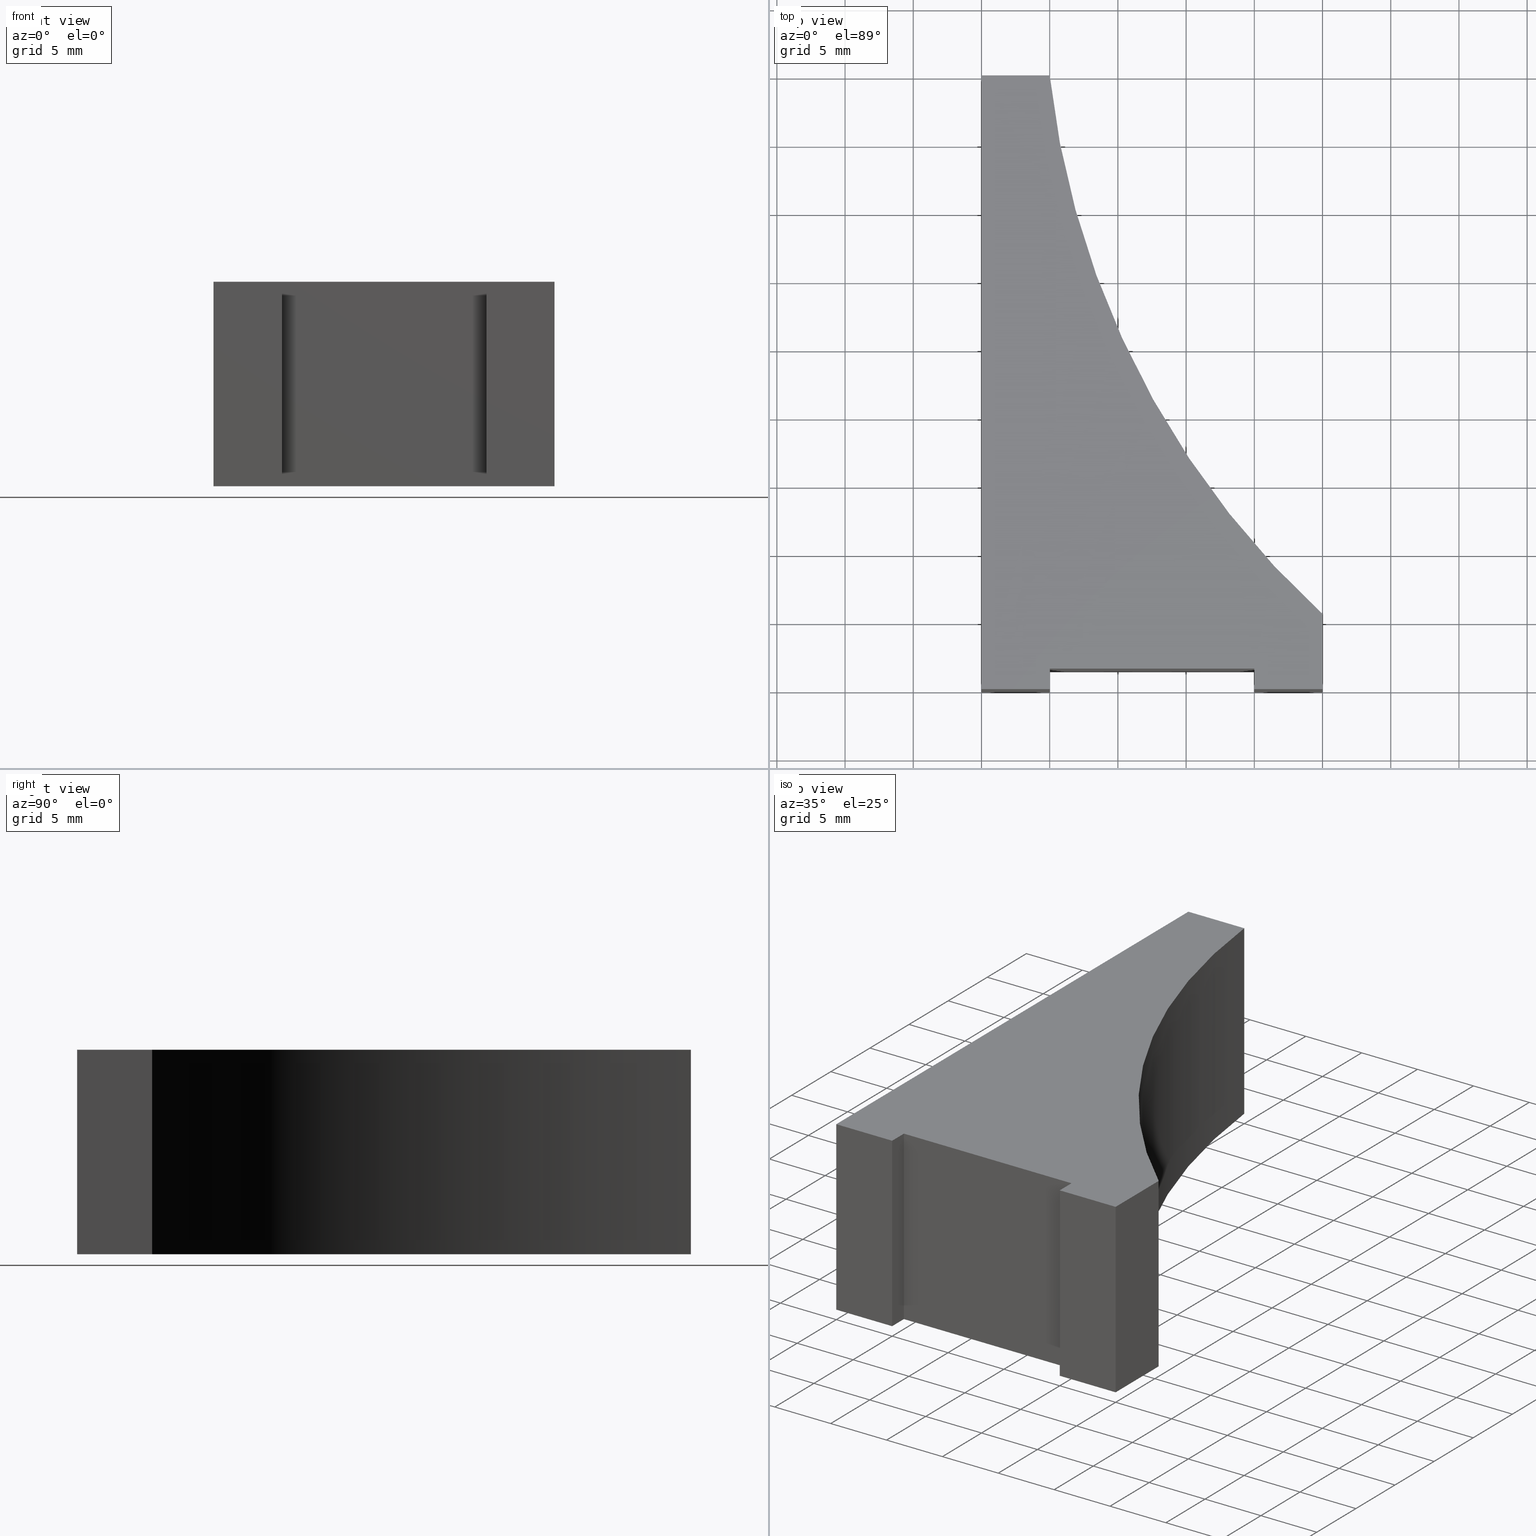
[diagram: canonical four-view strip — front | top / right | iso, engineering-drawing reading convention]
A machine part, canonical four-view strip (front | top / right | iso — engineering-drawing reading convention). The complete STEP part file that produces these views, byte-faithful:
ISO-10303-21;
HEADER;
/* Generated by software containing ST-Developer
 * from STEP Tools, Inc. (www.steptools.com) 
 */

FILE_DESCRIPTION(
/* description */ (''),
/* implementation_level */ '2;1');

FILE_NAME(
/* name */ 'E_3_01_07_09_00_WKZ-0065.stp',
/* time_stamp */ '2025-11-24T11:07:38+01:00',
/* author */ ('d.fischer'),
/* organization */ (''),
/* preprocessor_version */ 'ST-DEVELOPER v20',
/* originating_system */ 'Autodesk Inventor 2025',
/* authorisation */ '');

FILE_SCHEMA (('AUTOMOTIVE_DESIGN { 1 0 10303 214 3 1 1 }'));
ENDSEC;

DATA;
#10=MECHANICAL_DESIGN_GEOMETRIC_PRESENTATION_REPRESENTATION('',(#13),#359);
#11=SHAPE_REPRESENTATION_RELATIONSHIP('SRR','None',#366,#12);
#12=ADVANCED_BREP_SHAPE_REPRESENTATION('',(#14),#358);
#13=STYLED_ITEM('',(#375),#14);
#14=MANIFOLD_SOLID_BREP('Volumenk\X\F6rper1',#210);
#15=CIRCLE('',#240,63.);
#16=CIRCLE('',#241,63.);
#17=CYLINDRICAL_SURFACE('',#239,63.);
#18=FACE_OUTER_BOUND('',#29,.T.);
#19=FACE_OUTER_BOUND('',#30,.T.);
#20=FACE_OUTER_BOUND('',#31,.T.);
#21=FACE_OUTER_BOUND('',#32,.T.);
#22=FACE_OUTER_BOUND('',#33,.T.);
#23=FACE_OUTER_BOUND('',#34,.T.);
#24=FACE_OUTER_BOUND('',#35,.T.);
#25=FACE_OUTER_BOUND('',#36,.T.);
#26=FACE_OUTER_BOUND('',#37,.T.);
#27=FACE_OUTER_BOUND('',#38,.T.);
#28=FACE_OUTER_BOUND('',#39,.T.);
#29=EDGE_LOOP('',(#135,#136,#137,#138));
#30=EDGE_LOOP('',(#139,#140,#141,#142));
#31=EDGE_LOOP('',(#143,#144,#145,#146));
#32=EDGE_LOOP('',(#147,#148,#149,#150));
#33=EDGE_LOOP('',(#151,#152,#153,#154));
#34=EDGE_LOOP('',(#155,#156,#157,#158));
#35=EDGE_LOOP('',(#159,#160,#161,#162));
#36=EDGE_LOOP('',(#163,#164,#165,#166));
#37=EDGE_LOOP('',(#167,#168,#169,#170));
#38=EDGE_LOOP('',(#171,#172,#173,#174,#175,#176,#177,#178,#179));
#39=EDGE_LOOP('',(#180,#181,#182,#183,#184,#185,#186,#187,#188));
#40=LINE('',#303,#65);
#41=LINE('',#305,#66);
#42=LINE('',#307,#67);
#43=LINE('',#308,#68);
#44=LINE('',#311,#69);
#45=LINE('',#313,#70);
#46=LINE('',#314,#71);
#47=LINE('',#317,#72);
#48=LINE('',#319,#73);
#49=LINE('',#320,#74);
#50=LINE('',#323,#75);
#51=LINE('',#325,#76);
#52=LINE('',#326,#77);
#53=LINE('',#329,#78);
#54=LINE('',#331,#79);
#55=LINE('',#332,#80);
#56=LINE('',#335,#81);
#57=LINE('',#337,#82);
#58=LINE('',#338,#83);
#59=LINE('',#344,#84);
#60=LINE('',#347,#85);
#61=LINE('',#349,#86);
#62=LINE('',#350,#87);
#63=LINE('',#352,#88);
#64=LINE('',#353,#89);
#65=VECTOR('',#250,10.);
#66=VECTOR('',#251,10.);
#67=VECTOR('',#252,10.);
#68=VECTOR('',#253,10.);
#69=VECTOR('',#256,10.);
#70=VECTOR('',#257,10.);
#71=VECTOR('',#258,10.);
#72=VECTOR('',#261,10.);
#73=VECTOR('',#262,10.);
#74=VECTOR('',#263,10.);
#75=VECTOR('',#266,10.);
#76=VECTOR('',#267,10.);
#77=VECTOR('',#268,10.);
#78=VECTOR('',#271,10.);
#79=VECTOR('',#272,10.);
#80=VECTOR('',#273,10.);
#81=VECTOR('',#276,10.);
#82=VECTOR('',#277,10.);
#83=VECTOR('',#278,10.);
#84=VECTOR('',#285,10.);
#85=VECTOR('',#288,10.);
#86=VECTOR('',#289,10.);
#87=VECTOR('',#290,10.);
#88=VECTOR('',#293,10.);
#89=VECTOR('',#294,10.);
#90=VERTEX_POINT('',#301);
#91=VERTEX_POINT('',#302);
#92=VERTEX_POINT('',#304);
#93=VERTEX_POINT('',#306);
#94=VERTEX_POINT('',#310);
#95=VERTEX_POINT('',#312);
#96=VERTEX_POINT('',#316);
#97=VERTEX_POINT('',#318);
#98=VERTEX_POINT('',#322);
#99=VERTEX_POINT('',#324);
#100=VERTEX_POINT('',#328);
#101=VERTEX_POINT('',#330);
#102=VERTEX_POINT('',#334);
#103=VERTEX_POINT('',#336);
#104=VERTEX_POINT('',#340);
#105=VERTEX_POINT('',#342);
#106=VERTEX_POINT('',#346);
#107=VERTEX_POINT('',#348);
#108=EDGE_CURVE('',#90,#91,#40,.T.);
#109=EDGE_CURVE('',#90,#92,#41,.T.);
#110=EDGE_CURVE('',#93,#92,#42,.T.);
#111=EDGE_CURVE('',#91,#93,#43,.T.);
#112=EDGE_CURVE('',#91,#94,#44,.T.);
#113=EDGE_CURVE('',#95,#93,#45,.T.);
#114=EDGE_CURVE('',#94,#95,#46,.T.);
#115=EDGE_CURVE('',#94,#96,#47,.T.);
#116=EDGE_CURVE('',#97,#95,#48,.T.);
#117=EDGE_CURVE('',#96,#97,#49,.T.);
#118=EDGE_CURVE('',#96,#98,#50,.T.);
#119=EDGE_CURVE('',#99,#97,#51,.T.);
#120=EDGE_CURVE('',#98,#99,#52,.T.);
#121=EDGE_CURVE('',#98,#100,#53,.T.);
#122=EDGE_CURVE('',#101,#99,#54,.T.);
#123=EDGE_CURVE('',#100,#101,#55,.T.);
#124=EDGE_CURVE('',#100,#102,#56,.T.);
#125=EDGE_CURVE('',#103,#101,#57,.T.);
#126=EDGE_CURVE('',#102,#103,#58,.T.);
#127=EDGE_CURVE('',#102,#104,#15,.T.);
#128=EDGE_CURVE('',#105,#103,#16,.T.);
#129=EDGE_CURVE('',#104,#105,#59,.T.);
#130=EDGE_CURVE('',#104,#106,#60,.T.);
#131=EDGE_CURVE('',#107,#105,#61,.T.);
#132=EDGE_CURVE('',#106,#107,#62,.T.);
#133=EDGE_CURVE('',#106,#90,#63,.T.);
#134=EDGE_CURVE('',#92,#107,#64,.T.);
#135=ORIENTED_EDGE('',*,*,#108,.F.);
#136=ORIENTED_EDGE('',*,*,#109,.T.);
#137=ORIENTED_EDGE('',*,*,#110,.F.);
#138=ORIENTED_EDGE('',*,*,#111,.F.);
#139=ORIENTED_EDGE('',*,*,#112,.F.);
#140=ORIENTED_EDGE('',*,*,#111,.T.);
#141=ORIENTED_EDGE('',*,*,#113,.F.);
#142=ORIENTED_EDGE('',*,*,#114,.F.);
#143=ORIENTED_EDGE('',*,*,#115,.F.);
#144=ORIENTED_EDGE('',*,*,#114,.T.);
#145=ORIENTED_EDGE('',*,*,#116,.F.);
#146=ORIENTED_EDGE('',*,*,#117,.F.);
#147=ORIENTED_EDGE('',*,*,#118,.F.);
#148=ORIENTED_EDGE('',*,*,#117,.T.);
#149=ORIENTED_EDGE('',*,*,#119,.F.);
#150=ORIENTED_EDGE('',*,*,#120,.F.);
#151=ORIENTED_EDGE('',*,*,#121,.F.);
#152=ORIENTED_EDGE('',*,*,#120,.T.);
#153=ORIENTED_EDGE('',*,*,#122,.F.);
#154=ORIENTED_EDGE('',*,*,#123,.F.);
#155=ORIENTED_EDGE('',*,*,#124,.F.);
#156=ORIENTED_EDGE('',*,*,#123,.T.);
#157=ORIENTED_EDGE('',*,*,#125,.F.);
#158=ORIENTED_EDGE('',*,*,#126,.F.);
#159=ORIENTED_EDGE('',*,*,#127,.F.);
#160=ORIENTED_EDGE('',*,*,#126,.T.);
#161=ORIENTED_EDGE('',*,*,#128,.F.);
#162=ORIENTED_EDGE('',*,*,#129,.F.);
#163=ORIENTED_EDGE('',*,*,#130,.F.);
#164=ORIENTED_EDGE('',*,*,#129,.T.);
#165=ORIENTED_EDGE('',*,*,#131,.F.);
#166=ORIENTED_EDGE('',*,*,#132,.F.);
#167=ORIENTED_EDGE('',*,*,#133,.F.);
#168=ORIENTED_EDGE('',*,*,#132,.T.);
#169=ORIENTED_EDGE('',*,*,#134,.F.);
#170=ORIENTED_EDGE('',*,*,#109,.F.);
#171=ORIENTED_EDGE('',*,*,#134,.T.);
#172=ORIENTED_EDGE('',*,*,#131,.T.);
#173=ORIENTED_EDGE('',*,*,#128,.T.);
#174=ORIENTED_EDGE('',*,*,#125,.T.);
#175=ORIENTED_EDGE('',*,*,#122,.T.);
#176=ORIENTED_EDGE('',*,*,#119,.T.);
#177=ORIENTED_EDGE('',*,*,#116,.T.);
#178=ORIENTED_EDGE('',*,*,#113,.T.);
#179=ORIENTED_EDGE('',*,*,#110,.T.);
#180=ORIENTED_EDGE('',*,*,#133,.T.);
#181=ORIENTED_EDGE('',*,*,#108,.T.);
#182=ORIENTED_EDGE('',*,*,#112,.T.);
#183=ORIENTED_EDGE('',*,*,#115,.T.);
#184=ORIENTED_EDGE('',*,*,#118,.T.);
#185=ORIENTED_EDGE('',*,*,#121,.T.);
#186=ORIENTED_EDGE('',*,*,#124,.T.);
#187=ORIENTED_EDGE('',*,*,#127,.T.);
#188=ORIENTED_EDGE('',*,*,#130,.T.);
#189=PLANE('',#233);
#190=PLANE('',#234);
#191=PLANE('',#235);
#192=PLANE('',#236);
#193=PLANE('',#237);
#194=PLANE('',#238);
#195=PLANE('',#242);
#196=PLANE('',#243);
#197=PLANE('',#244);
#198=PLANE('',#245);
#199=ADVANCED_FACE('',(#18),#189,.T.);
#200=ADVANCED_FACE('',(#19),#190,.T.);
#201=ADVANCED_FACE('',(#20),#191,.T.);
#202=ADVANCED_FACE('',(#21),#192,.T.);
#203=ADVANCED_FACE('',(#22),#193,.T.);
#204=ADVANCED_FACE('',(#23),#194,.T.);
#205=ADVANCED_FACE('',(#24),#17,.F.);
#206=ADVANCED_FACE('',(#25),#195,.T.);
#207=ADVANCED_FACE('',(#26),#196,.T.);
#208=ADVANCED_FACE('',(#27),#197,.F.);
#209=ADVANCED_FACE('',(#28),#198,.T.);
#210=CLOSED_SHELL('',(#199,#200,#201,#202,#203,#204,#205,#206,#207,#208,
#209));
#211=DERIVED_UNIT_ELEMENT(#214,1.);
#212=DERIVED_UNIT_ELEMENT(#361,-3.);
#213=DIMENSIONAL_EXPONENTS(0.,1.,0.,0.,0.,0.,0.);
#214=(
CONVERSION_BASED_UNIT('gram',#216)
MASS_UNIT()
NAMED_UNIT(#213)
);
#215=(
MASS_UNIT()
NAMED_UNIT(*)
SI_UNIT(.KILO.,.GRAM.)
);
#216=MASS_MEASURE_WITH_UNIT(MASS_MEASURE(0.001),#215);
#217=DERIVED_UNIT((#211,#212));
#218=MEASURE_REPRESENTATION_ITEM('density measure',
POSITIVE_RATIO_MEASURE(1.),#217);
#219=PROPERTY_DEFINITION_REPRESENTATION(#224,#221);
#220=PROPERTY_DEFINITION_REPRESENTATION(#225,#222);
#221=REPRESENTATION('material name',(#223),#358);
#222=REPRESENTATION('density',(#218),#358);
#223=DESCRIPTIVE_REPRESENTATION_ITEM('Allgemein','Allgemein');
#224=PROPERTY_DEFINITION('material property','material name',#368);
#225=PROPERTY_DEFINITION('material property','density of part',#368);
#226=DATE_TIME_ROLE('creation_date');
#227=APPLIED_DATE_AND_TIME_ASSIGNMENT(#228,#226,(#368));
#228=DATE_AND_TIME(#229,#230);
#229=CALENDAR_DATE(2013,21,10);
#230=LOCAL_TIME(0,0,0.,#231);
#231=COORDINATED_UNIVERSAL_TIME_OFFSET(0,0,.BEHIND.);
#232=AXIS2_PLACEMENT_3D('',#299,#246,#247);
#233=AXIS2_PLACEMENT_3D('',#300,#248,#249);
#234=AXIS2_PLACEMENT_3D('',#309,#254,#255);
#235=AXIS2_PLACEMENT_3D('',#315,#259,#260);
#236=AXIS2_PLACEMENT_3D('',#321,#264,#265);
#237=AXIS2_PLACEMENT_3D('',#327,#269,#270);
#238=AXIS2_PLACEMENT_3D('',#333,#274,#275);
#239=AXIS2_PLACEMENT_3D('',#339,#279,#280);
#240=AXIS2_PLACEMENT_3D('',#341,#281,#282);
#241=AXIS2_PLACEMENT_3D('',#343,#283,#284);
#242=AXIS2_PLACEMENT_3D('',#345,#286,#287);
#243=AXIS2_PLACEMENT_3D('',#351,#291,#292);
#244=AXIS2_PLACEMENT_3D('',#354,#295,#296);
#245=AXIS2_PLACEMENT_3D('',#355,#297,#298);
#246=DIRECTION('axis',(0.,0.,1.));
#247=DIRECTION('refdir',(1.,0.,0.));
#248=DIRECTION('center_axis',(0.,-1.,0.));
#249=DIRECTION('ref_axis',(-1.,0.,0.));
#250=DIRECTION('',(1.,0.,0.));
#251=DIRECTION('',(0.,0.,-1.));
#252=DIRECTION('',(-1.,0.,0.));
#253=DIRECTION('',(0.,0.,-1.));
#254=DIRECTION('center_axis',(1.,0.,0.));
#255=DIRECTION('ref_axis',(0.,-1.,0.));
#256=DIRECTION('',(0.,1.,0.));
#257=DIRECTION('',(0.,-1.,0.));
#258=DIRECTION('',(0.,0.,-1.));
#259=DIRECTION('center_axis',(-7.40148683083438E-17,-1.,0.));
#260=DIRECTION('ref_axis',(-1.,7.40148683083438E-17,0.));
#261=DIRECTION('',(1.,-7.40148683083438E-17,0.));
#262=DIRECTION('',(-1.,7.40148683083438E-17,0.));
#263=DIRECTION('',(0.,0.,-1.));
#264=DIRECTION('center_axis',(-1.,0.,0.));
#265=DIRECTION('ref_axis',(0.,1.,0.));
#266=DIRECTION('',(0.,-1.,0.));
#267=DIRECTION('',(0.,1.,0.));
#268=DIRECTION('',(0.,0.,-1.));
#269=DIRECTION('center_axis',(0.,-1.,0.));
#270=DIRECTION('ref_axis',(-1.,0.,0.));
#271=DIRECTION('',(1.,0.,0.));
#272=DIRECTION('',(-1.,0.,0.));
#273=DIRECTION('',(0.,0.,-1.));
#274=DIRECTION('center_axis',(1.,0.,0.));
#275=DIRECTION('ref_axis',(0.,-1.,0.));
#276=DIRECTION('',(0.,1.,0.));
#277=DIRECTION('',(0.,-1.,0.));
#278=DIRECTION('',(0.,0.,-1.));
#279=DIRECTION('center_axis',(0.,0.,-1.));
#280=DIRECTION('ref_axis',(0.993994859872907,0.109426772529581,0.));
#281=DIRECTION('center_axis',(0.,0.,-1.));
#282=DIRECTION('ref_axis',(0.993994859872907,0.109426772529581,0.));
#283=DIRECTION('center_axis',(0.,0.,1.));
#284=DIRECTION('ref_axis',(0.993994859872907,0.109426772529581,0.));
#285=DIRECTION('',(0.,0.,-1.));
#286=DIRECTION('center_axis',(0.,1.,0.));
#287=DIRECTION('ref_axis',(1.,0.,0.));
#288=DIRECTION('',(-1.,0.,0.));
#289=DIRECTION('',(1.,0.,0.));
#290=DIRECTION('',(0.,0.,-1.));
#291=DIRECTION('center_axis',(-1.,0.,0.));
#292=DIRECTION('ref_axis',(0.,1.,0.));
#293=DIRECTION('',(0.,-1.,0.));
#294=DIRECTION('',(0.,1.,0.));
#295=DIRECTION('center_axis',(0.,0.,1.));
#296=DIRECTION('ref_axis',(1.,0.,0.));
#297=DIRECTION('center_axis',(0.,0.,1.));
#298=DIRECTION('ref_axis',(1.,0.,0.));
#299=CARTESIAN_POINT('',(0.,0.,0.));
#300=CARTESIAN_POINT('Origin',(5.,0.,0.));
#301=CARTESIAN_POINT('',(0.,0.,0.));
#302=CARTESIAN_POINT('',(5.,0.,0.));
#303=CARTESIAN_POINT('',(0.,0.,0.));
#304=CARTESIAN_POINT('',(0.,0.,-15.));
#305=CARTESIAN_POINT('',(0.,0.,0.));
#306=CARTESIAN_POINT('',(5.,0.,-15.));
#307=CARTESIAN_POINT('',(0.,0.,-15.));
#308=CARTESIAN_POINT('',(5.,0.,0.));
#309=CARTESIAN_POINT('Origin',(5.,1.5,0.));
#310=CARTESIAN_POINT('',(5.,1.5,0.));
#311=CARTESIAN_POINT('',(5.,0.,0.));
#312=CARTESIAN_POINT('',(5.,1.5,-15.));
#313=CARTESIAN_POINT('',(5.,0.,-15.));
#314=CARTESIAN_POINT('',(5.,1.5,0.));
#315=CARTESIAN_POINT('Origin',(20.,1.5,0.));
#316=CARTESIAN_POINT('',(20.,1.5,0.));
#317=CARTESIAN_POINT('',(5.,1.5,0.));
#318=CARTESIAN_POINT('',(20.,1.5,-15.));
#319=CARTESIAN_POINT('',(5.,1.5,-15.));
#320=CARTESIAN_POINT('',(20.,1.5,0.));
#321=CARTESIAN_POINT('Origin',(20.,0.,0.));
#322=CARTESIAN_POINT('',(20.,0.,0.));
#323=CARTESIAN_POINT('',(20.,1.5,0.));
#324=CARTESIAN_POINT('',(20.,0.,-15.));
#325=CARTESIAN_POINT('',(20.,1.5,-15.));
#326=CARTESIAN_POINT('',(20.,0.,0.));
#327=CARTESIAN_POINT('Origin',(25.,0.,0.));
#328=CARTESIAN_POINT('',(25.,0.,0.));
#329=CARTESIAN_POINT('',(20.,0.,0.));
#330=CARTESIAN_POINT('',(25.,0.,-15.));
#331=CARTESIAN_POINT('',(20.,0.,-15.));
#332=CARTESIAN_POINT('',(25.,0.,0.));
#333=CARTESIAN_POINT('Origin',(25.,5.5,0.));
#334=CARTESIAN_POINT('',(25.,5.5,0.));
#335=CARTESIAN_POINT('',(25.,0.,0.));
#336=CARTESIAN_POINT('',(25.,5.5,-15.));
#337=CARTESIAN_POINT('',(25.,0.,-15.));
#338=CARTESIAN_POINT('',(25.,5.5,0.));
#339=CARTESIAN_POINT('Origin',(67.6216761719931,51.8938866693636,0.));
#340=CARTESIAN_POINT('',(5.,45.,0.));
#341=CARTESIAN_POINT('Origin',(67.6216761719931,51.8938866693636,0.));
#342=CARTESIAN_POINT('',(5.,45.,-15.));
#343=CARTESIAN_POINT('Origin',(67.6216761719931,51.8938866693636,-15.));
#344=CARTESIAN_POINT('',(5.,45.,0.));
#345=CARTESIAN_POINT('Origin',(0.,45.,0.));
#346=CARTESIAN_POINT('',(0.,45.,0.));
#347=CARTESIAN_POINT('',(5.,45.,0.));
#348=CARTESIAN_POINT('',(0.,45.,-15.));
#349=CARTESIAN_POINT('',(5.,45.,-15.));
#350=CARTESIAN_POINT('',(0.,45.,0.));
#351=CARTESIAN_POINT('Origin',(0.,0.,0.));
#352=CARTESIAN_POINT('',(0.,45.,0.));
#353=CARTESIAN_POINT('',(0.,45.,-15.));
#354=CARTESIAN_POINT('Origin',(7.9030145511575,17.8246399475874,-15.));
#355=CARTESIAN_POINT('Origin',(7.9030145511575,17.8246399475874,0.));
#356=UNCERTAINTY_MEASURE_WITH_UNIT(LENGTH_MEASURE(0.01),#360,
'DISTANCE_ACCURACY_VALUE',
'Maximum model space distance between geometric entities at asserted c
onnectivities');
#357=UNCERTAINTY_MEASURE_WITH_UNIT(LENGTH_MEASURE(0.01),#360,
'DISTANCE_ACCURACY_VALUE',
'Maximum model space distance between geometric entities at asserted c
onnectivities');
#358=(
GEOMETRIC_REPRESENTATION_CONTEXT(3)
GLOBAL_UNCERTAINTY_ASSIGNED_CONTEXT((#356))
GLOBAL_UNIT_ASSIGNED_CONTEXT((#360,#362,#363))
REPRESENTATION_CONTEXT('','3D')
);
#359=(
GEOMETRIC_REPRESENTATION_CONTEXT(3)
GLOBAL_UNCERTAINTY_ASSIGNED_CONTEXT((#357))
GLOBAL_UNIT_ASSIGNED_CONTEXT((#360,#362,#363))
REPRESENTATION_CONTEXT('','3D')
);
#360=(
LENGTH_UNIT()
NAMED_UNIT(*)
SI_UNIT(.MILLI.,.METRE.)
);
#361=(
LENGTH_UNIT()
NAMED_UNIT(*)
SI_UNIT(.CENTI.,.METRE.)
);
#362=(
NAMED_UNIT(*)
PLANE_ANGLE_UNIT()
SI_UNIT($,.RADIAN.)
);
#363=(
NAMED_UNIT(*)
SI_UNIT($,.STERADIAN.)
SOLID_ANGLE_UNIT()
);
#364=SHAPE_DEFINITION_REPRESENTATION(#365,#366);
#365=PRODUCT_DEFINITION_SHAPE('',$,#368);
#366=SHAPE_REPRESENTATION('',(#232),#358);
#367=PRODUCT_DEFINITION_CONTEXT('part definition',#372,'design');
#368=PRODUCT_DEFINITION('WKZ-0065','E_3_01_07_09_00_WKZ-0065',#369,#367);
#369=PRODUCT_DEFINITION_FORMATION('',$,#374);
#370=PRODUCT_RELATED_PRODUCT_CATEGORY('E_3_01_07_09_00_WKZ-0065',
'E_3_01_07_09_00_WKZ-0065',(#374));
#371=APPLICATION_PROTOCOL_DEFINITION('international standard',
'automotive_design',2009,#372);
#372=APPLICATION_CONTEXT(
'Core Data for Automotive Mechanical Design Process');
#373=PRODUCT_CONTEXT('part definition',#372,'mechanical');
#374=PRODUCT('WKZ-0065','E_3_01_07_09_00_WKZ-0065',$,(#373));
#375=PRESENTATION_STYLE_ASSIGNMENT((#376));
#376=SURFACE_STYLE_USAGE(.BOTH.,#379);
#377=SURFACE_STYLE_RENDERING_WITH_PROPERTIES($,#383,(#378));
#378=SURFACE_STYLE_TRANSPARENT(0.);
#379=SURFACE_SIDE_STYLE('',(#380,#377));
#380=SURFACE_STYLE_FILL_AREA(#381);
#381=FILL_AREA_STYLE('',(#382));
#382=FILL_AREA_STYLE_COLOUR('',#383);
#383=COLOUR_RGB('',0.749019607843137,0.749019607843137,0.749019607843137);
ENDSEC;
END-ISO-10303-21;
